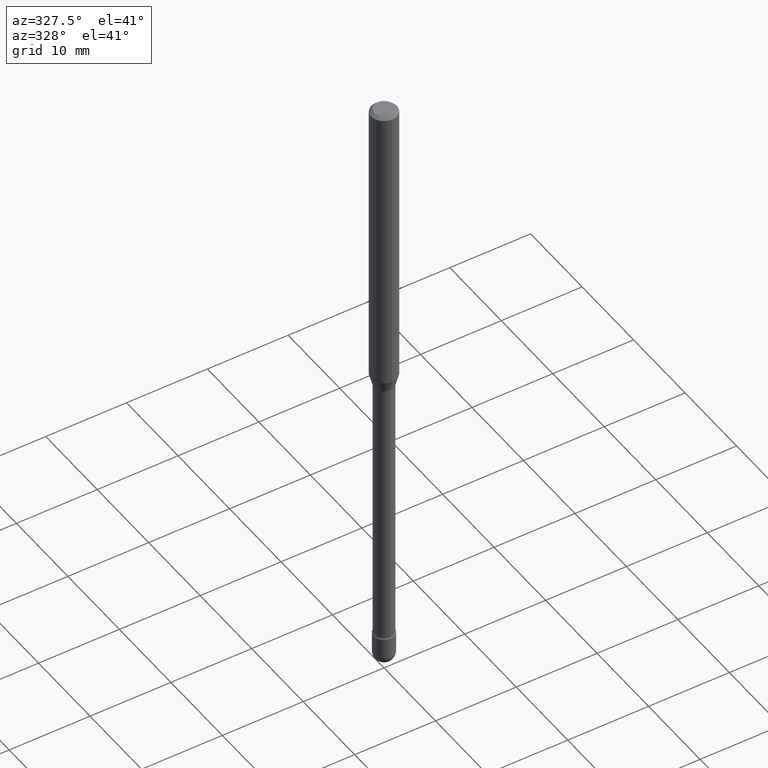
[diagram: clean part render]
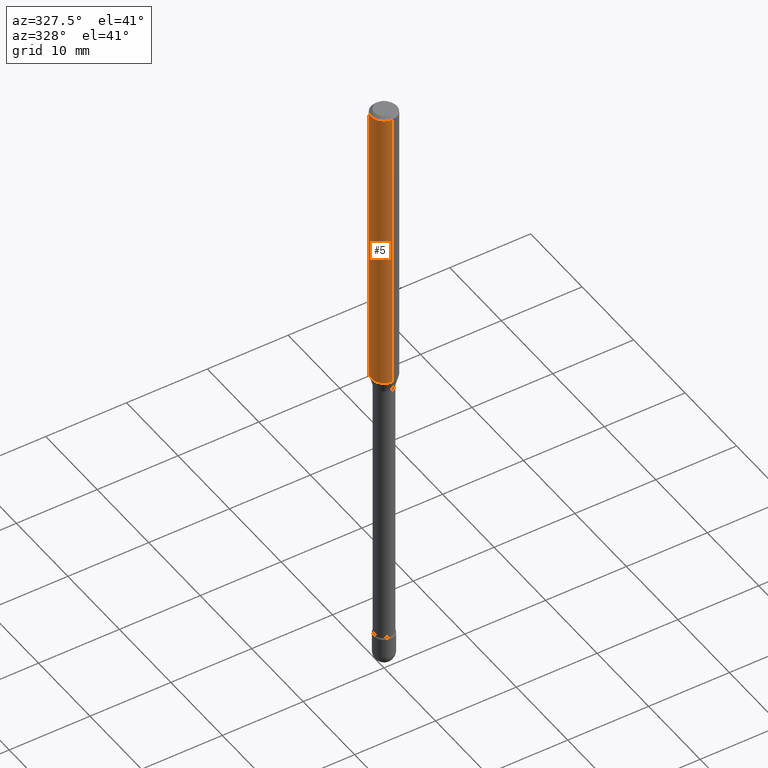
[diagram: same view with one face highlighted and labeled with its STEP entity id]
A machine part, auxiliary view. The second image highlights one B-rep face of the part: STEP entity #5.
In plain terms, the highlighted cylindrical surface (edge-blend (fillet) strip) has radius 1.5875 mm, axis along (-0, 0, 1).
Its self-contained STEP definition (entity closure, byte-faithful):
#5 = ADVANCED_FACE ( 'NONE', ( #501 ), #382, .T. ) ;
#36 = VECTOR ( 'NONE', #453, 39.37007874015748143 ) ;
#41 = AXIS2_PLACEMENT_3D ( 'NONE', #341, #253, #460 ) ;
#51 = LINE ( 'NONE', #190, #36 ) ;
#74 = ORIENTED_EDGE ( 'NONE', *, *, #420, .T. ) ;
#80 = AXIS2_PLACEMENT_3D ( 'NONE', #496, #97, #275 ) ;
#92 = CARTESIAN_POINT ( 'NONE',  ( 3.668131614036230645E-31, -5.237324536725515192E-17, -0.01500000000000008271 ) ) ;
#97 = DIRECTION ( 'NONE',  ( -2.445421076024140334E-29, 3.491549691150324233E-15, 1.000000000000000000 ) ) ;
#109 = VERTEX_POINT ( 'NONE', #182 ) ;
#112 = CIRCLE ( 'NONE', #493, 0.06250000000000000000 ) ;
#126 = VECTOR ( 'NONE', #237, 39.37007874015748143 ) ;
#130 = ORIENTED_EDGE ( 'NONE', *, *, #464, .F. ) ;
#144 = LINE ( 'NONE', #320, #126 ) ;
#155 = CARTESIAN_POINT ( 'NONE',  ( 4.440892098500980163E-16, 0.06249999999999499706, -1.442153212482682800 ) ) ;
#182 = CARTESIAN_POINT ( 'NONE',  ( -4.364351673553912750E-16, -0.06250000000000005551, -0.01499999999999986587 ) ) ;
#190 = CARTESIAN_POINT ( 'NONE',  ( -4.364351673553916201E-16, -0.06250000000000000000, 6.962952545881414017E-16 ) ) ;
#211 = VERTEX_POINT ( 'NONE', #351 ) ;
#217 = EDGE_LOOP ( 'NONE', ( #130, #74, #398, #424 ) ) ;
#237 = DIRECTION ( 'NONE',  ( -2.445421076024140334E-29, 3.491549691150324233E-15, 1.000000000000000000 ) ) ;
#253 = DIRECTION ( 'NONE',  ( -2.445421076024140334E-29, 3.491549691150324233E-15, 1.000000000000000000 ) ) ;
#275 = DIRECTION ( 'NONE',  ( -6.982962677686265922E-15, -1.000000000000000000, 4.370956789862821150E-15 ) ) ;
#320 = CARTESIAN_POINT ( 'NONE',  ( 4.440892098500625669E-16, 0.06250000000000000000, 2.598515431943507740E-16 ) ) ;
#341 = CARTESIAN_POINT ( 'NONE',  ( -1.169113584055446105E-44, 1.669184350826100908E-30, 4.780733988912460139E-16 ) ) ;
#351 = CARTESIAN_POINT ( 'NONE',  ( -4.364351673553561707E-16, -0.06250000000000500988, -1.442153212482682356 ) ) ;
#355 = VERTEX_POINT ( 'NONE', #474 ) ;
#382 = CYLINDRICAL_SURFACE ( 'NONE', #41, 0.06250000000000000000 ) ;
#385 = VERTEX_POINT ( 'NONE', #155 ) ;
#389 = DIRECTION ( 'NONE',  ( -6.982962677686265922E-15, -1.000000000000000000, 3.483106191921935554E-15 ) ) ;
#398 = ORIENTED_EDGE ( 'NONE', *, *, #425, .T. ) ;
#420 = EDGE_CURVE ( 'NONE', #385, #211, #514, .T. ) ;
#424 = ORIENTED_EDGE ( 'NONE', *, *, #560, .F. ) ;
#425 = EDGE_CURVE ( 'NONE', #211, #109, #51, .T. ) ;
#453 = DIRECTION ( 'NONE',  ( -2.445421076024140334E-29, 3.491549691150324233E-15, 1.000000000000000000 ) ) ;
#460 = DIRECTION ( 'NONE',  ( -6.982962677686265922E-15, -1.000000000000000000, 3.491549691150325021E-15 ) ) ;
#464 = EDGE_CURVE ( 'NONE', #385, #355, #144, .T. ) ;
#474 = CARTESIAN_POINT ( 'NONE',  ( 4.440892098500981149E-16, 0.06249999999999995837, -0.01500000000000030129 ) ) ;
#493 = AXIS2_PLACEMENT_3D ( 'NONE', #92, #565, #389 ) ;
#496 = CARTESIAN_POINT ( 'NONE',  ( 3.526671860661072103E-29, -5.035349603635358334E-15, -1.442153212482682578 ) ) ;
#501 = FACE_OUTER_BOUND ( 'NONE', #217, .T. ) ;
#514 = CIRCLE ( 'NONE', #80, 0.06250000000000000000 ) ;
#560 = EDGE_CURVE ( 'NONE', #355, #109, #112, .T. ) ;
#565 = DIRECTION ( 'NONE',  ( -2.445421076024140334E-29, 3.491549691150324233E-15, 1.000000000000000000 ) ) ;